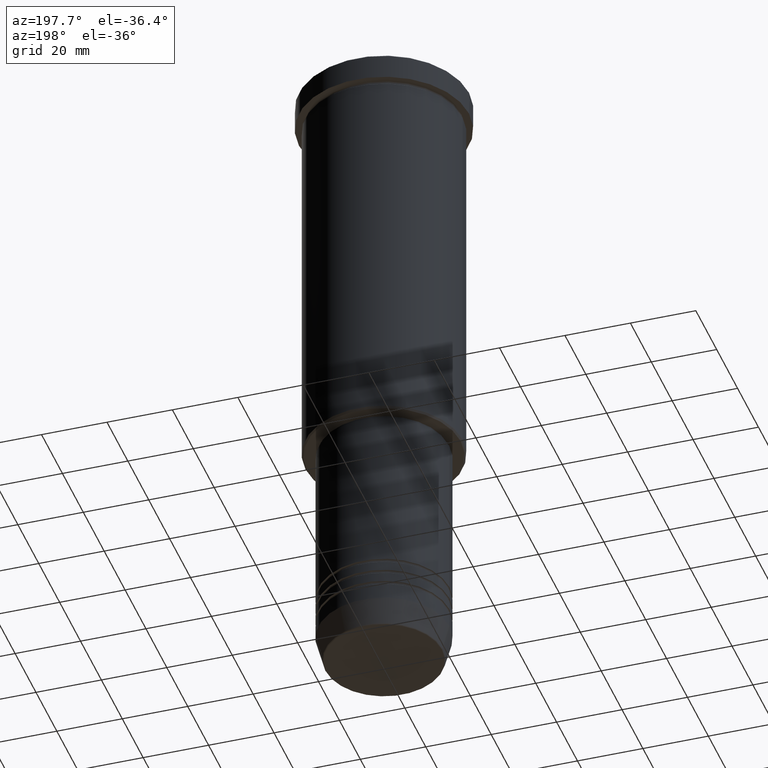
[diagram: clean part render]
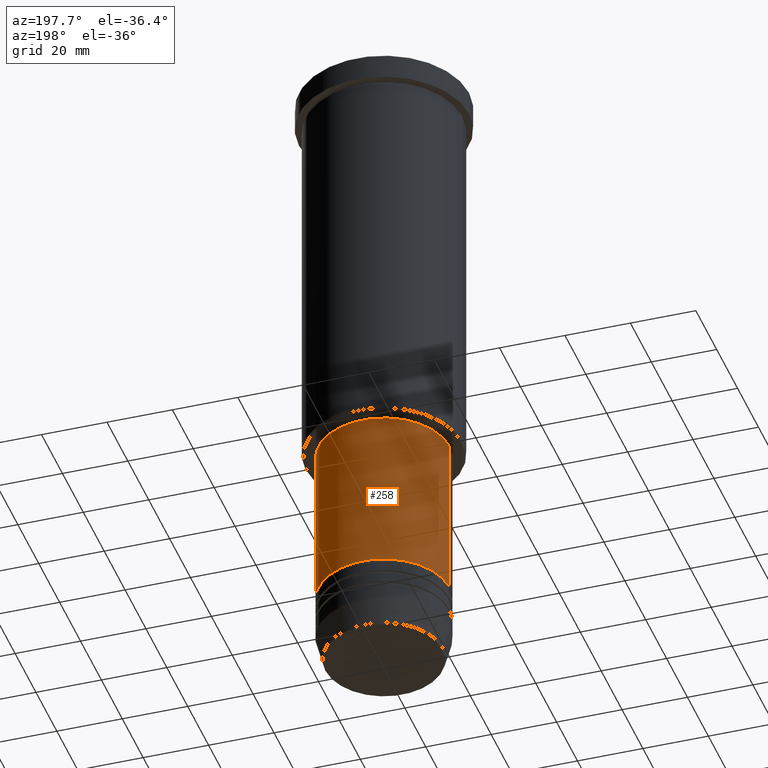
[diagram: same view with one face highlighted and labeled with its STEP entity id]
A machine part, auxiliary view. The second image highlights one B-rep face of the part: STEP entity #258.
In plain terms, the highlighted cylindrical surface (partial cylindrical patch) has radius 20 mm, axis along (-0, -0, 1).
Its self-contained STEP definition (entity closure, byte-faithful):
#15 = EDGE_LOOP ( 'NONE', ( #1142, #448, #600, #548 ) ) ;
#17 = VECTOR ( 'NONE', #617, 1000.000000000000000 ) ;
#42 = FACE_OUTER_BOUND ( 'NONE', #15, .T. ) ;
#54 = VECTOR ( 'NONE', #606, 1000.000000000000000 ) ;
#66 = AXIS2_PLACEMENT_3D ( 'NONE', #868, #488, #304 ) ;
#116 = LINE ( 'NONE', #482, #17 ) ;
#124 = AXIS2_PLACEMENT_3D ( 'NONE', #410, #959, #511 ) ;
#246 = CYLINDRICAL_SURFACE ( 'NONE', #124, 20.00000000000000355 ) ;
#258 = ADVANCED_FACE ( 'NONE', ( #42 ), #246, .T. ) ;
#304 = DIRECTION ( 'NONE',  ( 1.000000000000000000, 0.000000000000000000, 0.000000000000000000 ) ) ;
#344 = DIRECTION ( 'NONE',  ( -0.000000000000000000, -0.000000000000000000, 1.000000000000000000 ) ) ;
#379 = CARTESIAN_POINT ( 'NONE',  ( 20.00000000000000355, 0.000000000000000000, -127.0000000000000000 ) ) ;
#410 = CARTESIAN_POINT ( 'NONE',  ( 0.000000000000000000, 0.000000000000000000, 0.000000000000000000 ) ) ;
#426 = AXIS2_PLACEMENT_3D ( 'NONE', #887, #344, #892 ) ;
#448 = ORIENTED_EDGE ( 'NONE', *, *, #553, .T. ) ;
#482 = CARTESIAN_POINT ( 'NONE',  ( 20.00000000000000355, 0.000000000000000000, 0.000000000000000000 ) ) ;
#488 = DIRECTION ( 'NONE',  ( -0.000000000000000000, -0.000000000000000000, 1.000000000000000000 ) ) ;
#511 = DIRECTION ( 'NONE',  ( 1.000000000000000000, 0.000000000000000000, 0.000000000000000000 ) ) ;
#544 = CARTESIAN_POINT ( 'NONE',  ( -20.00000000000000355, 2.449293598294706907E-15, -178.0000000000000284 ) ) ;
#548 = ORIENTED_EDGE ( 'NONE', *, *, #745, .F. ) ;
#553 = EDGE_CURVE ( 'NONE', #823, #813, #802, .T. ) ;
#600 = ORIENTED_EDGE ( 'NONE', *, *, #1168, .F. ) ;
#606 = DIRECTION ( 'NONE',  ( -0.000000000000000000, -0.000000000000000000, 1.000000000000000000 ) ) ;
#617 = DIRECTION ( 'NONE',  ( -0.000000000000000000, -0.000000000000000000, 1.000000000000000000 ) ) ;
#713 = CIRCLE ( 'NONE', #426, 20.00000000000000355 ) ;
#727 = CARTESIAN_POINT ( 'NONE',  ( -20.00000000000000355, 2.449293598294706907E-15, -127.0000000000000000 ) ) ;
#745 = EDGE_CURVE ( 'NONE', #750, #957, #116, .T. ) ;
#750 = VERTEX_POINT ( 'NONE', #885 ) ;
#794 = CARTESIAN_POINT ( 'NONE',  ( -20.00000000000000355, 2.449293598294706907E-15, 0.000000000000000000 ) ) ;
#802 = LINE ( 'NONE', #794, #54 ) ;
#813 = VERTEX_POINT ( 'NONE', #727 ) ;
#823 = VERTEX_POINT ( 'NONE', #544 ) ;
#853 = CIRCLE ( 'NONE', #66, 20.00000000000000355 ) ;
#868 = CARTESIAN_POINT ( 'NONE',  ( 0.000000000000000000, 0.000000000000000000, -178.0000000000000284 ) ) ;
#885 = CARTESIAN_POINT ( 'NONE',  ( 20.00000000000000355, 0.000000000000000000, -178.0000000000000284 ) ) ;
#887 = CARTESIAN_POINT ( 'NONE',  ( 0.000000000000000000, 0.000000000000000000, -127.0000000000000000 ) ) ;
#892 = DIRECTION ( 'NONE',  ( 1.000000000000000000, 0.000000000000000000, 0.000000000000000000 ) ) ;
#957 = VERTEX_POINT ( 'NONE', #379 ) ;
#959 = DIRECTION ( 'NONE',  ( -0.000000000000000000, -0.000000000000000000, 1.000000000000000000 ) ) ;
#1023 = EDGE_CURVE ( 'NONE', #750, #823, #853, .T. ) ;
#1142 = ORIENTED_EDGE ( 'NONE', *, *, #1023, .T. ) ;
#1168 = EDGE_CURVE ( 'NONE', #957, #813, #713, .T. ) ;